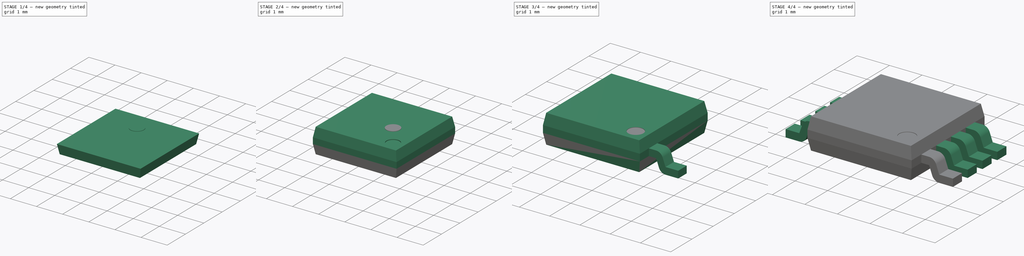
[diagram: build sequence overview — one tinted view per stage of 4, left to right]
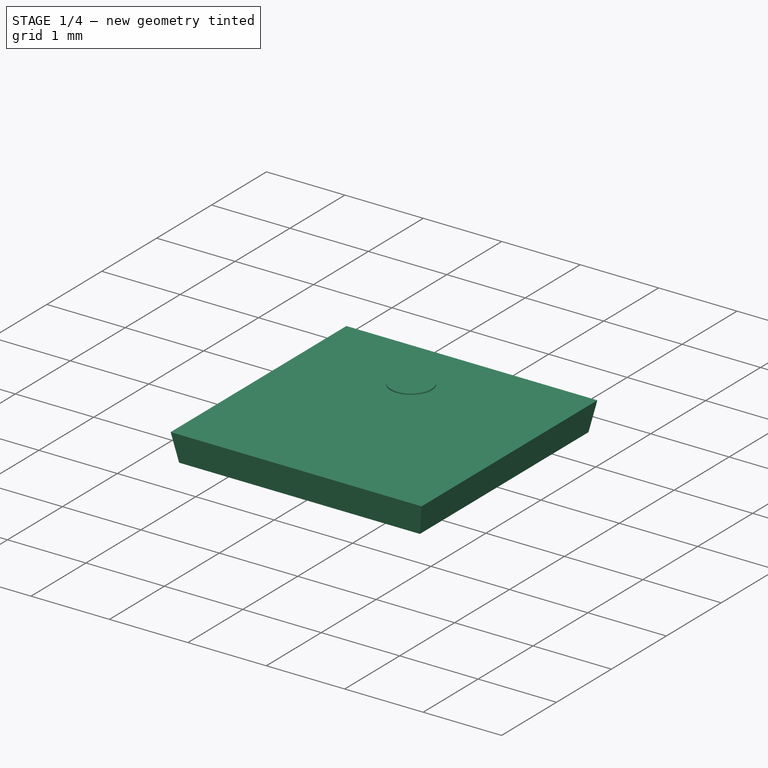
[diagram: stage 1 of 4 — iso view after this stage's code; geometry added in this stage tinted green]
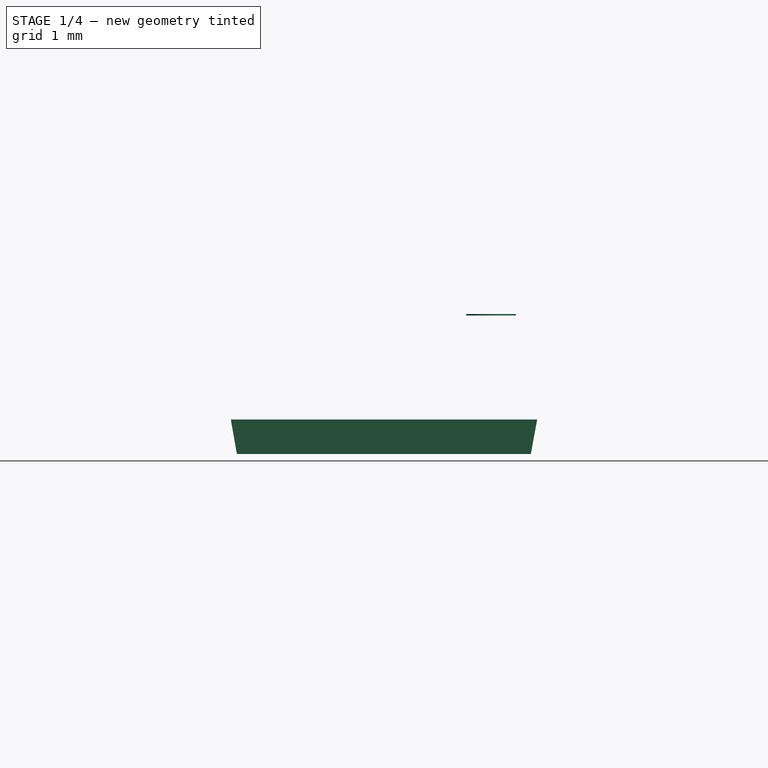
[diagram: stage 1 of 4 — front view after this stage's code; geometry added in this stage tinted green]
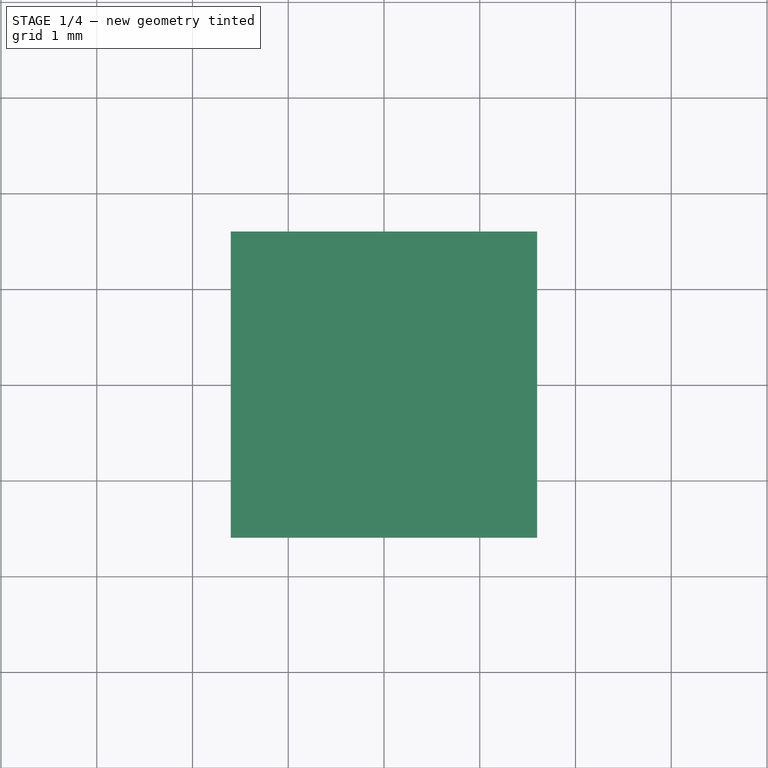
[diagram: stage 1 of 4 — top view after this stage's code; geometry added in this stage tinted green]
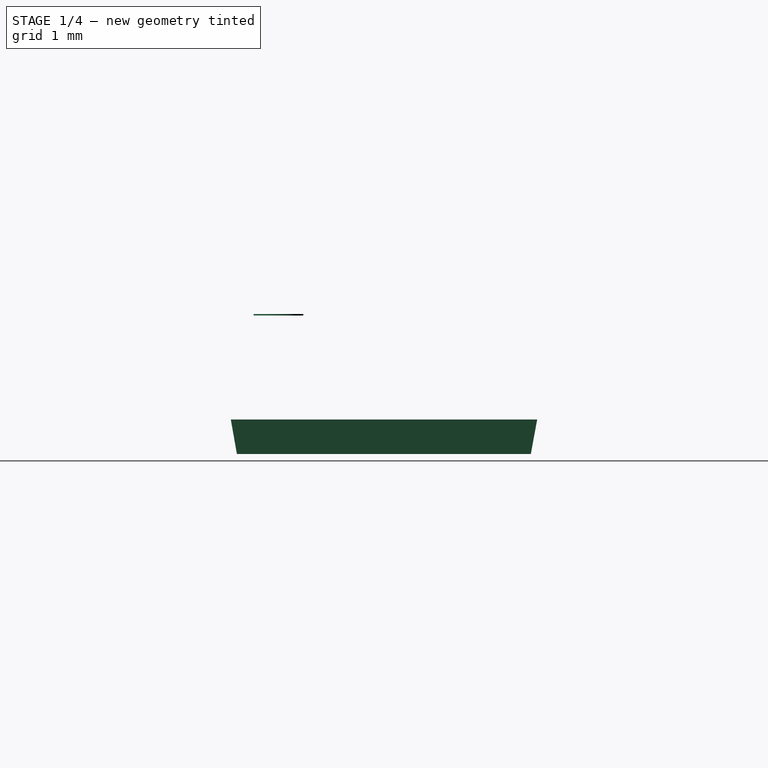
[diagram: stage 1 of 4 — right view after this stage's code; geometry added in this stage tinted green]
FCSTD DOCUMENT  (FreeCAD 0.16R6703 (Git))
Label: msop-8
License: All rights reserved
LicenseURL: http://en.wikipedia.org/wiki/All_rights_reserved
objects: Sketcher::SketchObject×5, Part::FeaturePython×5, App::DocumentObjectGroup×3, PartDesign::Pad×2, Part::Mirroring×2, Part::MultiFuse×2, Part::Feature×1, Part::Loft×1, PartDesign::Pocket×1, Part::Cylinder×1
note: 23 computed .brp shape members not serialized (recipe doc carries the construction recipe); baked Part::Feature solids carry a one-line shape summary decoded from their .brp

FEATURE [Part::Feature] Part__Feature355  label="User_Library-MSOP8-2"
  Placement = pos=(-4.3705e-08,5e-12,0) rot=(0.57735,0.57735,0.57735;2.0944rad)
  shape: bbox 5.15 x 3.2 x 1.01 mm, 191 faces (baked)
FEATURE [Sketcher::SketchObject] Sketch001  label="base_bottom"
  Placement = pos=(0,0,0.115) rot=(0,0,1;0rad)
  sketch-geometry (4):
    g0: LineSegment StartX=-1.6 StartY=1.6 StartZ=0 EndX=1.6 EndY=1.6 EndZ=0
    g1: LineSegment StartX=1.6 StartY=1.6 StartZ=0 EndX=1.6 EndY=-1.6 EndZ=0
    g2: LineSegment StartX=1.6 StartY=-1.6 StartZ=0 EndX=-1.6 EndY=-1.6 EndZ=0
    g3: LineSegment StartX=-1.6 StartY=-1.6 StartZ=0 EndX=-1.6 EndY=1.6 EndZ=0
  constraints (11):
    c: Coincident(g0,g1)
    c: Coincident(g1,g2)
    c: Coincident(g2,g3)
    c: Coincident(g3,g0)
    c: Horizontal(g0)
    c: Horizontal(g2)
    c: Vertical(g1)
    c: Vertical(g3)
    c: Symmetric(g0,g1,g-1)
    c: Equal(g3,g0)
    c: DistanceY(g1,g1) = 3.2
FEATURE [Sketcher::SketchObject] Sketch002  label="base_top"
  Placement = pos=(-0.00152231,-0.00152228,0.475) rot=(0,0,1;0rad)
  sketch-geometry (4):
    g0: LineSegment StartX=-1.535 StartY=1.535 StartZ=0 EndX=1.535 EndY=1.535 EndZ=0
    g1: LineSegment StartX=1.535 StartY=1.535 StartZ=0 EndX=1.535 EndY=-1.535 EndZ=0
    g2: LineSegment StartX=1.535 StartY=-1.535 StartZ=0 EndX=-1.535 EndY=-1.535 EndZ=0
    g3: LineSegment StartX=-1.535 StartY=-1.535 StartZ=0 EndX=-1.535 EndY=1.535 EndZ=0
  constraints (11):
    c: Coincident(g0,g1)
    c: Coincident(g1,g2)
    c: Coincident(g2,g3)
    c: Coincident(g3,g0)
    c: Horizontal(g0)
    c: Horizontal(g2)
    c: Vertical(g1)
    c: Vertical(g3)
    c: Symmetric(g0,g1,g-1)
    c: Equal(g1,g2)
    c: DistanceY(g1,g1) = 3.07
FEATURE [Part::Loft] Loft  label="body-top-src"
  Closed = false
  Ruled = false
  Sections = -> [Sketch001,Sketch002]
  Solid = true
FEATURE [Part::Mirroring] Part__Mirroring  label="body-bottom-src"
  Base = (0,0,0)
  Normal = (0,0,1)
  Source = -> Loft
FEATURE [Part::Cylinder] Cylinder  label="mark-src001"
  Angle = 360
  Height = 0.015
  Placement = pos=(1.118,-1.102,0.9715) rot=(0,0,1;0rad)
  Radius = 0.26
FEATURE [App::DocumentObjectGroup] Group  label="src"
  Group = -> [Group001,Group002,Cylinder]
FEATURE [Part::FeaturePython] Clone  label="mark"  # Draft clone (typed FeaturePython)
  Objects = -> [Cylinder]
  Placement = pos=(1.118,-1.102,0.9715) rot=(0,0,1;0rad)
  Scale = (1,1,1)
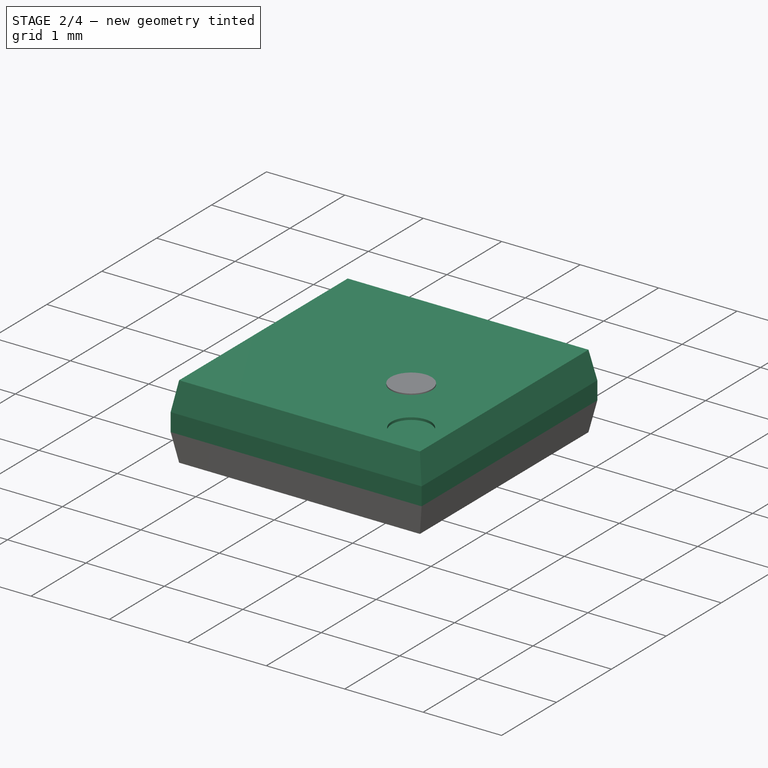
[diagram: stage 2 of 4 — iso view after this stage's code; geometry added in this stage tinted green]
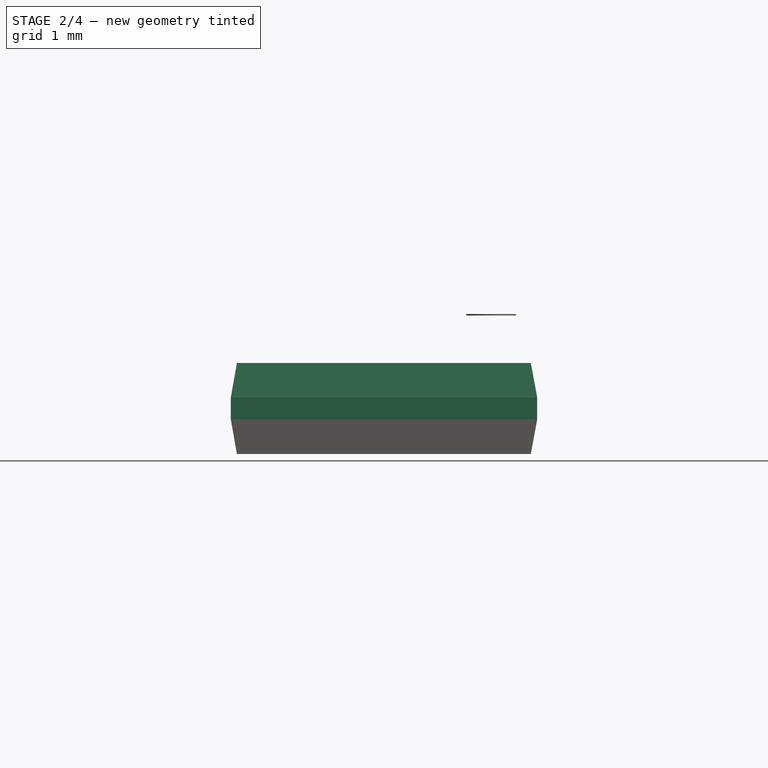
[diagram: stage 2 of 4 — front view after this stage's code; geometry added in this stage tinted green]
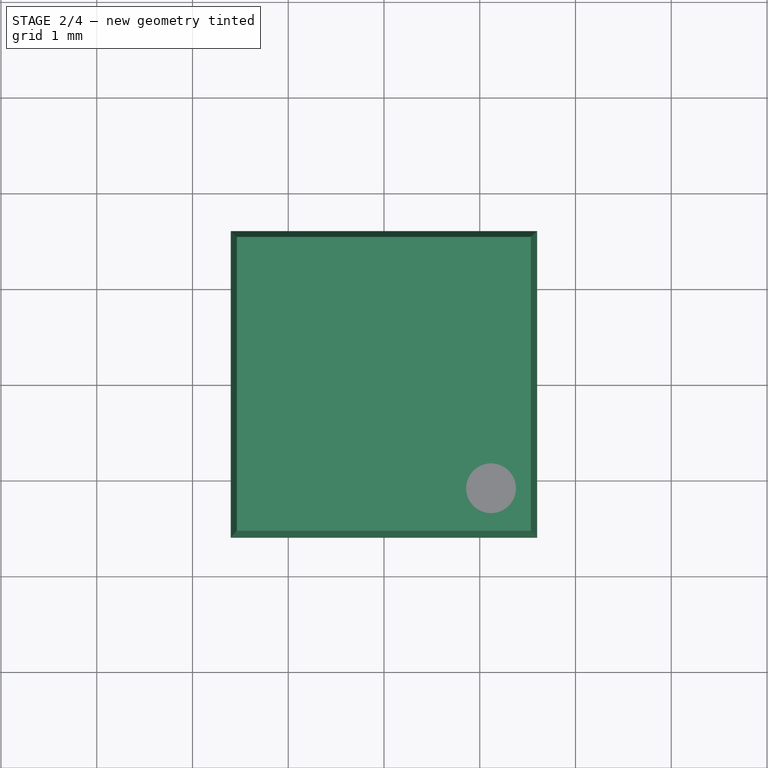
[diagram: stage 2 of 4 — top view after this stage's code; geometry added in this stage tinted green]
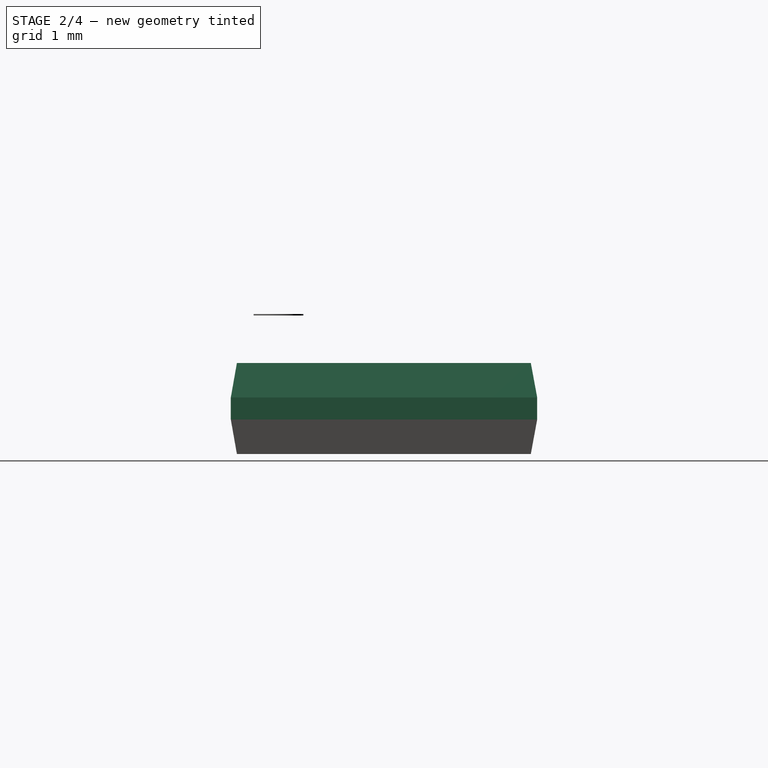
[diagram: stage 2 of 4 — right view after this stage's code; geometry added in this stage tinted green]
FEATURE [Sketcher::SketchObject] Sketch
  sketch-geometry (4):
    g0: LineSegment StartX=-1.6 StartY=1.6 StartZ=0 EndX=1.6 EndY=1.6 EndZ=0
    g1: LineSegment StartX=1.6 StartY=1.6 StartZ=0 EndX=1.6 EndY=-1.6 EndZ=0
    g2: LineSegment StartX=1.6 StartY=-1.6 StartZ=0 EndX=-1.6 EndY=-1.6 EndZ=0
    g3: LineSegment StartX=-1.6 StartY=-1.6 StartZ=0 EndX=-1.6 EndY=1.6 EndZ=0
  constraints (11):
    c: Coincident(g0,g1)
    c: Coincident(g1,g2)
    c: Coincident(g2,g3)
    c: Coincident(g3,g0)
    c: Horizontal(g0)
    c: Horizontal(g2)
    c: Vertical(g1)
    c: Vertical(g3)
    c: Symmetric(g0,g1,g-1)
    c: Equal(g0,g1)
    c: DistanceY(g1,g1) = 3.2
FEATURE [PartDesign::Pad] Pad  label="body-central-src"
  Length = 0.23
  Length2 = 100
  Midplane = true
  Sketch = -> Sketch
  Type = 0
FEATURE [Part::MultiFuse] Fusion  label="body-src-1"
  Shapes = -> [Pad,Loft,Part__Mirroring]
FEATURE [Sketcher::SketchObject] Sketch004  label="mark-sketch"
  Placement = pos=(0,0,0.475) rot=(0,0,1;0rad)
  Support = -> Fusion [Face14]
  sketch-geometry (1):
    g0: Circle CenterX=1.118 CenterY=-1.102 CenterZ=0 NormalX=0 NormalY=0 NormalZ=1 Radius=0.25
  constraints (3):
    c: Radius(g0) = 0.25
    c: DistanceX(g-1,g0) = 1.118
    c: DistanceY(g0,g-1) = 1.102
FEATURE [PartDesign::Pocket] Pocket  label="mark-src"
  Length = 0.03
  Sketch = -> Sketch004
  Type = 0
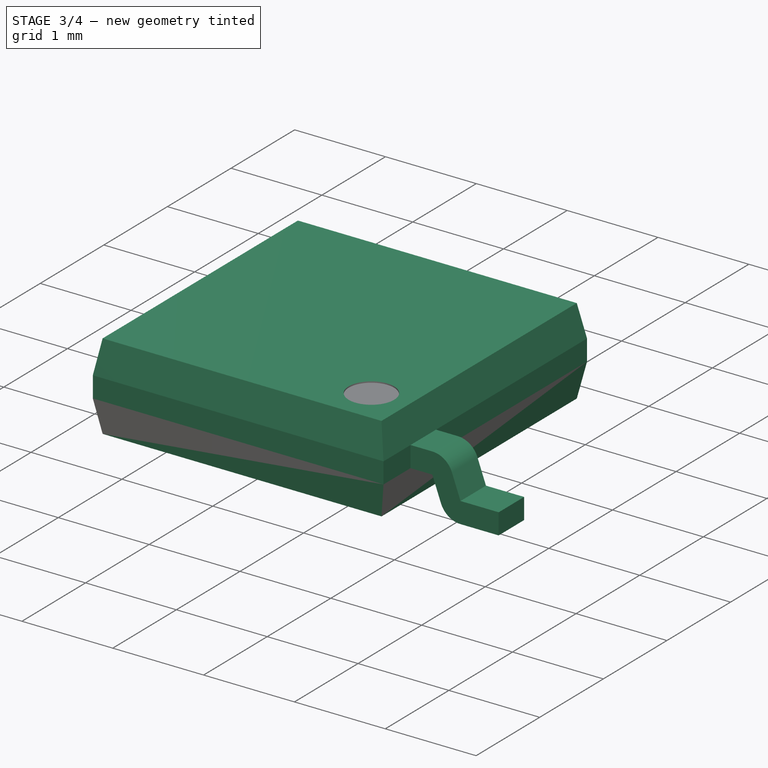
[diagram: stage 3 of 4 — iso view after this stage's code; geometry added in this stage tinted green]
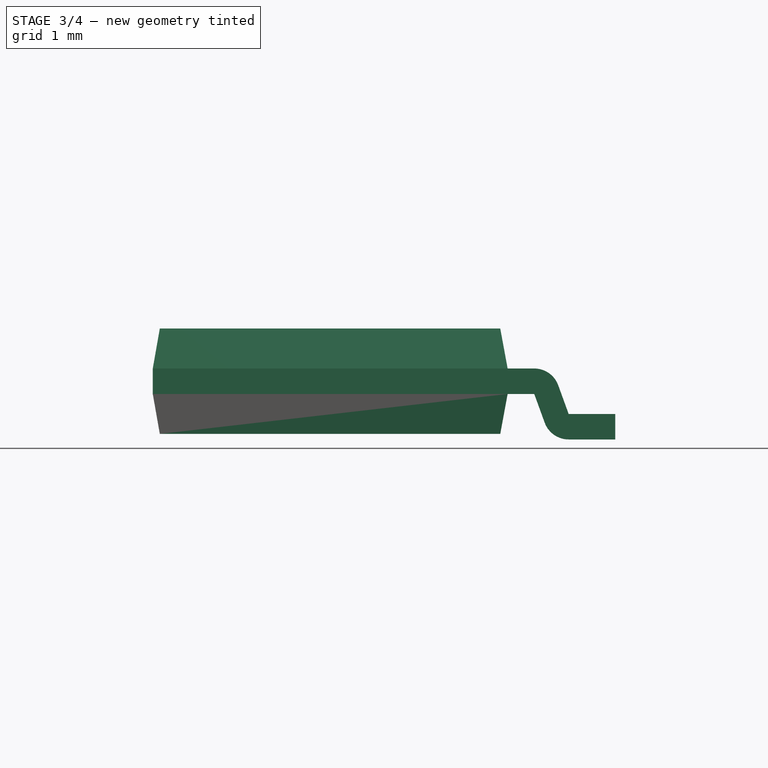
[diagram: stage 3 of 4 — front view after this stage's code; geometry added in this stage tinted green]
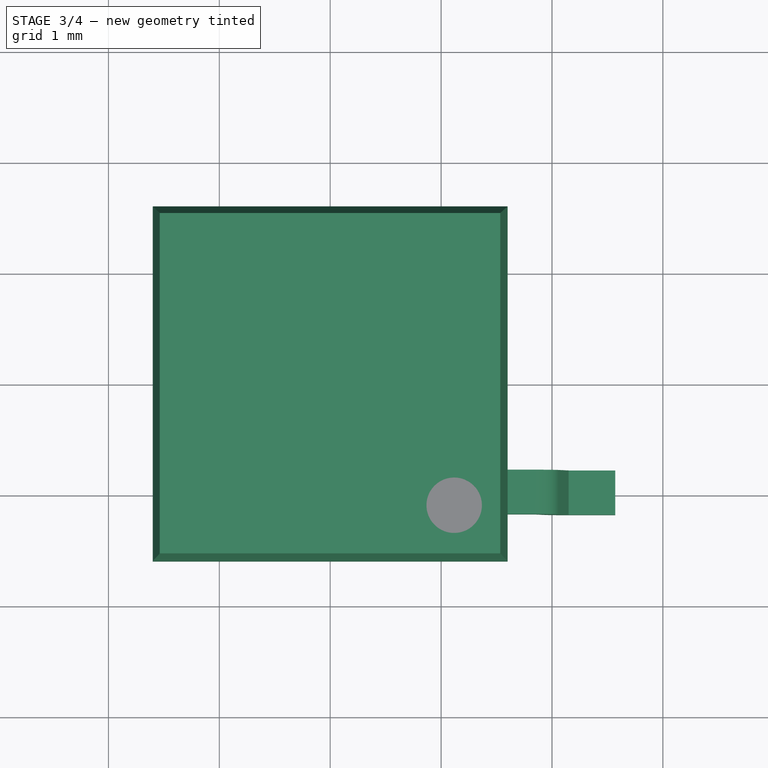
[diagram: stage 3 of 4 — top view after this stage's code; geometry added in this stage tinted green]
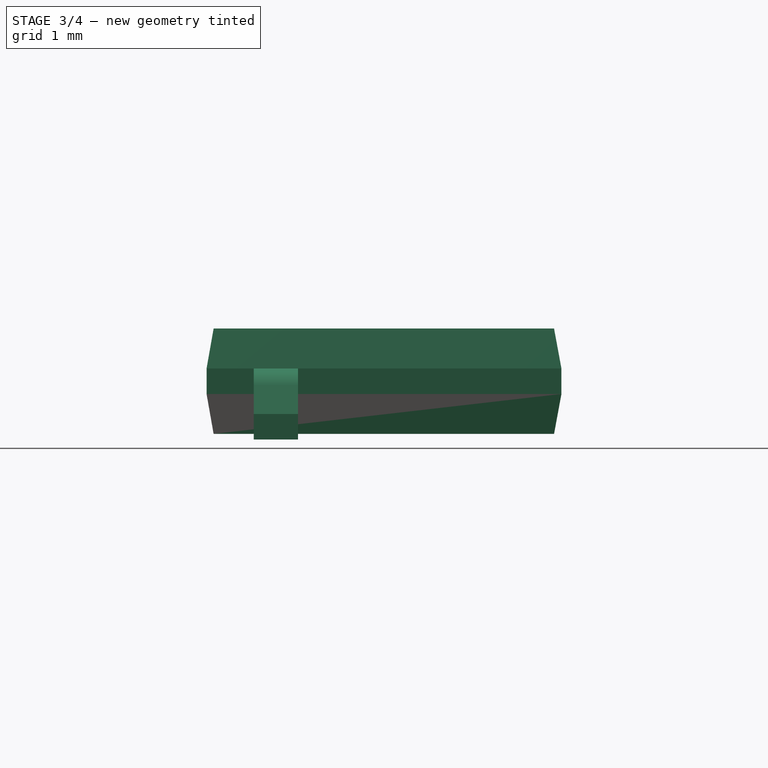
[diagram: stage 3 of 4 — right view after this stage's code; geometry added in this stage tinted green]
FEATURE [Sketcher::SketchObject] Sketch003
  Placement = pos=(0,0,0) rot=(1,0,0;1.5708rad)
  sketch-geometry (10):
    g0: LineSegment StartX=0.24 StartY=0.64 StartZ=0 EndX=0 EndY=0.64 EndZ=0
    g1: LineSegment StartX=0 StartY=0.64 StartZ=0 EndX=0 EndY=0.41 EndZ=0
    g2: LineSegment StartX=0 StartY=0.41 StartZ=0 EndX=0.24 EndY=0.41 EndZ=0
    g3: LineSegment StartX=0.24 StartY=0.41 StartZ=0 EndX=0.334146 EndY=0.151335 EndZ=0
    g4: LineSegment StartX=0.550276 StartY=0 StartZ=0 EndX=0.970276 EndY=0 EndZ=0
    g5: LineSegment StartX=0.970276 StartY=0 StartZ=0 EndX=0.970276 EndY=0.23 EndZ=0
    g6: LineSegment StartX=0.970276 StartY=0.23 StartZ=0 EndX=0.550276 EndY=0.23 EndZ=0
    g7: LineSegment StartX=0.550276 StartY=0.23 StartZ=0 EndX=0.456129 EndY=0.488665 EndZ=0
    g8: ArcOfCircle CenterX=0.24 CenterY=0.41 CenterZ=0 NormalX=0 NormalY=0 NormalZ=1 Radius=0.23 StartAngle=0.349066 EndAngle=1.5708
    g9: ArcOfCircle CenterX=0.550276 CenterY=0.23 CenterZ=0 NormalX=0 NormalY=0 NormalZ=1 Radius=0.23 StartAngle=3.49066 EndAngle=4.71239
  constraints (30):
    c: Horizontal(g0)
    c: Coincident(g0,g1)
    c: Vertical(g1)
    c: Coincident(g1,g2)
    c: Horizontal(g2)
    c: Coincident(g2,g3)
    c: Horizontal(g4)
    c: Coincident(g4,g5)
    c: Vertical(g5)
    c: Coincident(g5,g6)
    c: Horizontal(g6)
    c: Coincident(g6,g7)
    c: PointOnObject(g4,g-1)
    c: Equal(g5,g1)
    c: Equal(g6,g4)
    c: Equal(g2,g0)
    c: DistanceY(g1,g1) = 0.23
    c: Parallel(g3,g7)
    c: Coincident(g8,g2)
    c: Coincident(g8,g7)
    c: Coincident(g8,g0)
    c: Tangent(g8,g7)
    c: Angle(g2,g3) = 1.91986
    c: Coincident(g9,g6)
    c: Coincident(g9,g3)
    c: Coincident(g9,g4)
    c: DistanceX(g2,g2) = 0.24
    c: DistanceX(g4,g4) = 0.42
    c: DistanceY(g-1,g1) = 0.41
    c: PointOnObject(g0,g-2)
FEATURE [PartDesign::Pad] Pad001  label="Pad-1-src"
  Length = 0.4
  Length2 = 100
  Placement = pos=(0,0,0) rot=(1,0,0;1.5708rad)
  Sketch = -> Sketch003
  Type = 0
FEATURE [Part::FeaturePython] Clone001  label="Pad-1"  # Draft clone (typed FeaturePython)
  Objects = -> [Pad001]
  Placement = pos=(1.6,-0.775,-6.9939e-08) rot=(1,0,0;1.5708rad)
  Scale = (1,1,1)
FEATURE [App::DocumentObjectGroup] Group001  label="body-src"
  Group = -> [Fusion,Pocket]
FEATURE [Part::FeaturePython] Clone003  label="body"  # Draft clone (typed FeaturePython)
  Objects = -> [Pocket]
  Placement = pos=(8.5682e-08,-6.9934e-08,0.525) rot=(0,0,1;0rad)
  Scale = (1,1,1)
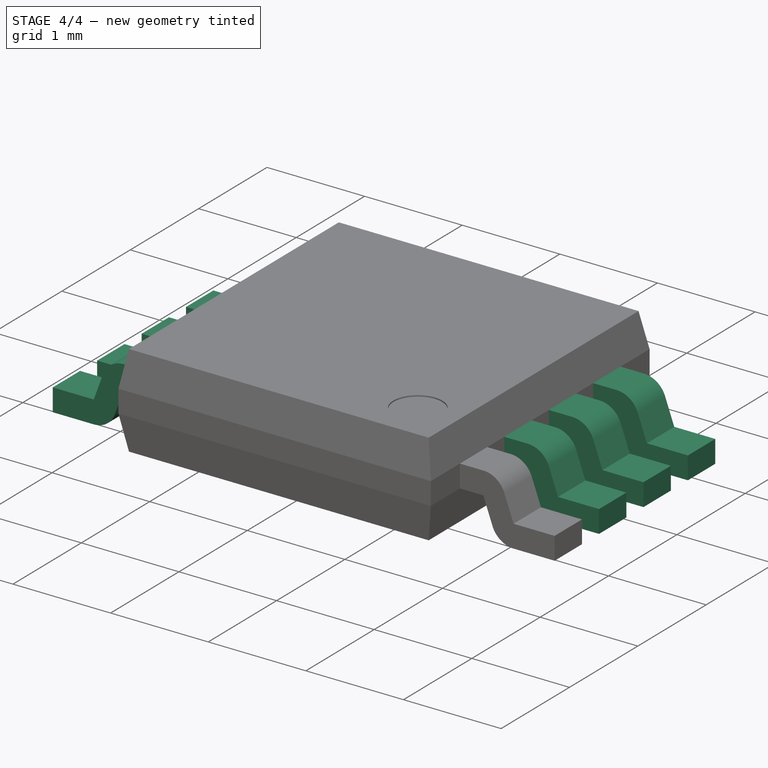
[diagram: stage 4 of 4 — iso view after this stage's code; geometry added in this stage tinted green]
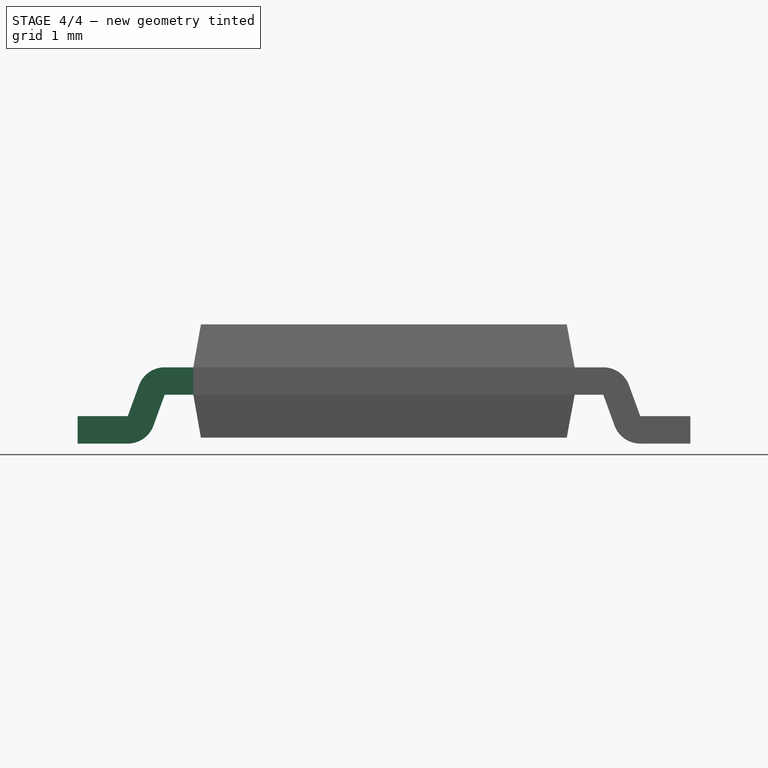
[diagram: stage 4 of 4 — front view after this stage's code; geometry added in this stage tinted green]
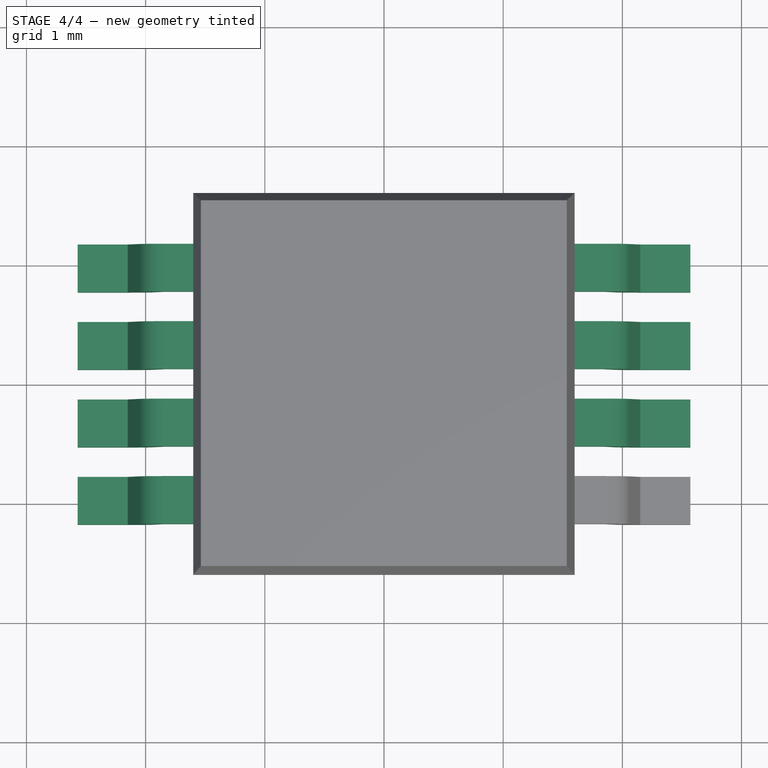
[diagram: stage 4 of 4 — top view after this stage's code; geometry added in this stage tinted green]
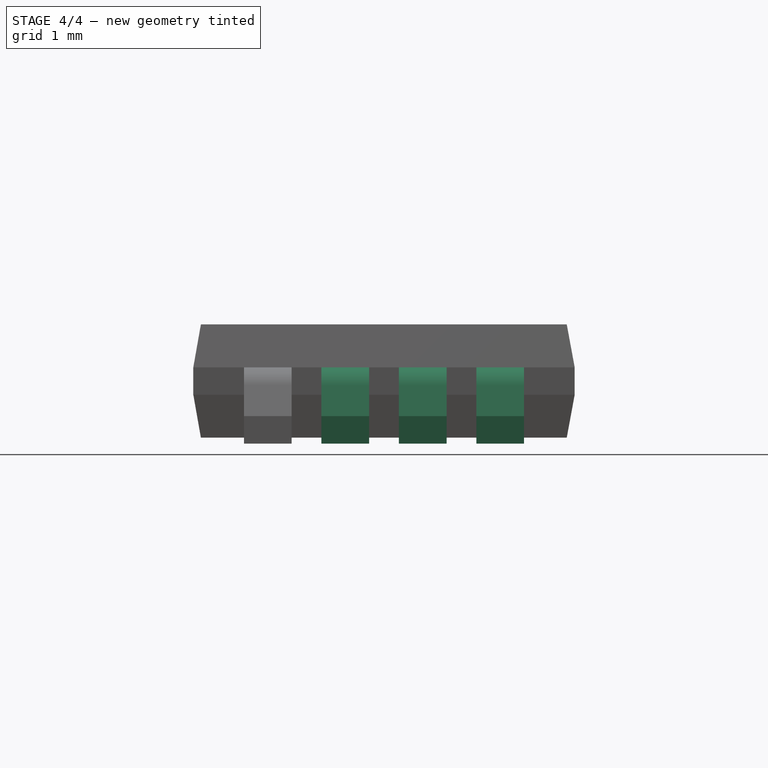
[diagram: stage 4 of 4 — right view after this stage's code; geometry added in this stage tinted green]
FEATURE [Part::Mirroring] Part__Mirroring001  label="Pad-8"
  Base = (0,0,0)
  Normal = (1,0,0)
  Source = -> Clone001
FEATURE [Part::MultiFuse] Fusion001  label="pads-1-8"
  Shapes = -> [Clone001,Part__Mirroring001]
FEATURE [Part::FeaturePython] Array  label="pads-src"  # Draft array (typed FeaturePython)
  Angle = 360
  ArrayType = 0
  Axis = (0,0,1)
  Base = -> Fusion001
  Center = (0,0,0)
  Fuse = false
  IntervalAxis = (0,0,0)
  IntervalX = (1,0,0)
  IntervalY = (0,0.65,0)
  IntervalZ = (0,0,0)
  NumberPolar = 1
  NumberX = 1
  NumberY = 4
  NumberZ = 1
FEATURE [App::DocumentObjectGroup] Group002  label="pads"
  Group = -> [Pad001,Array]
FEATURE [Part::FeaturePython] Clone002  label="pads001"  # Draft clone (typed FeaturePython)
  Objects = -> [Array]
  Scale = (1,1,1)
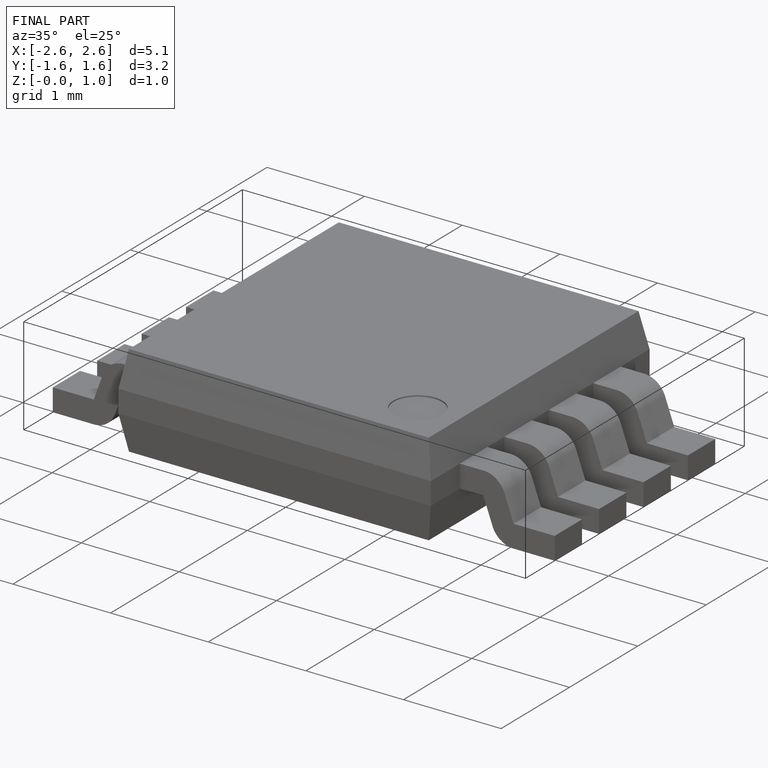
[diagram: finished part — iso view with bounding-box wireframe]
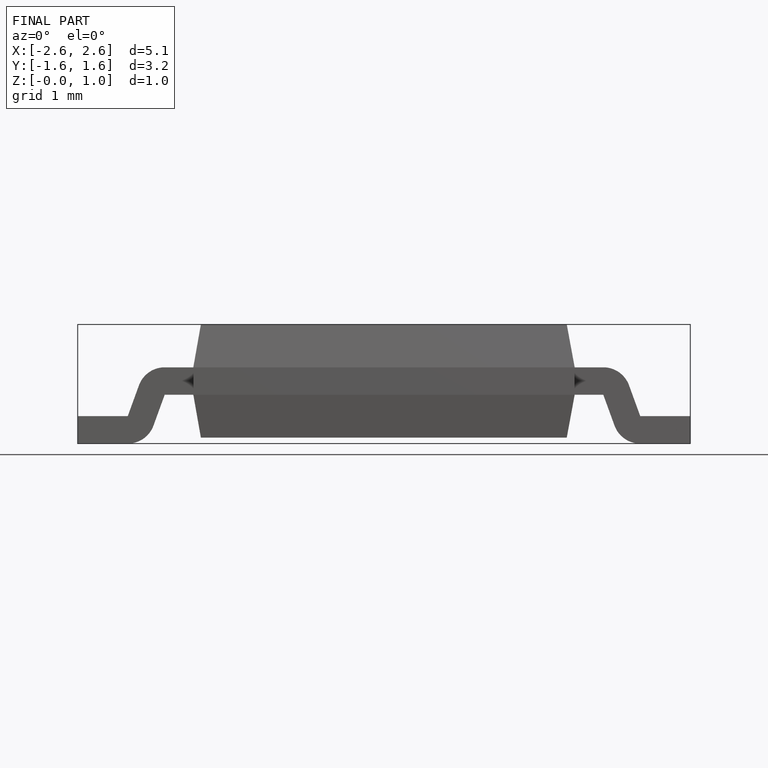
[diagram: finished part — front view with bounding-box wireframe]
